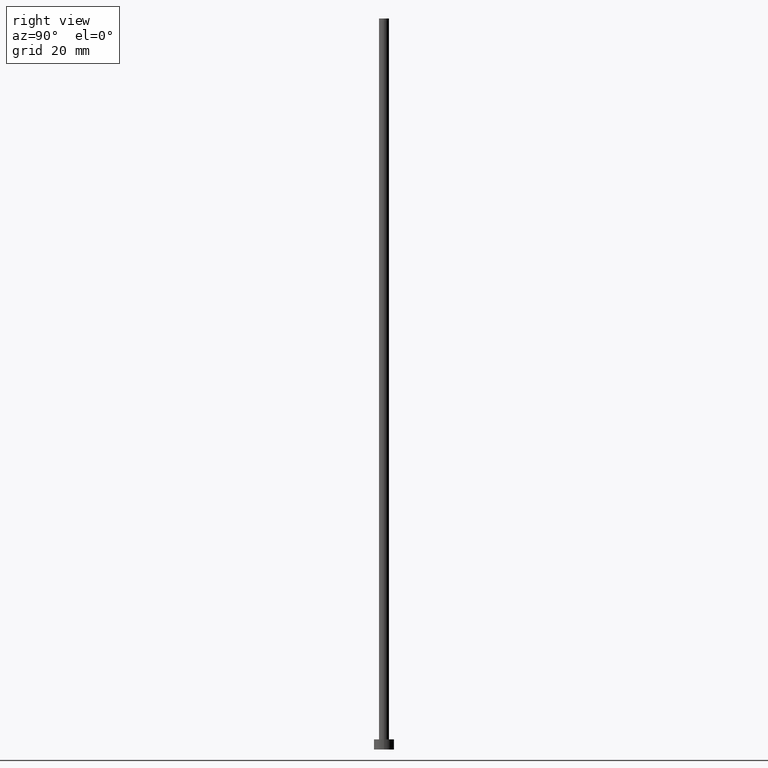
[diagram: clean part render]
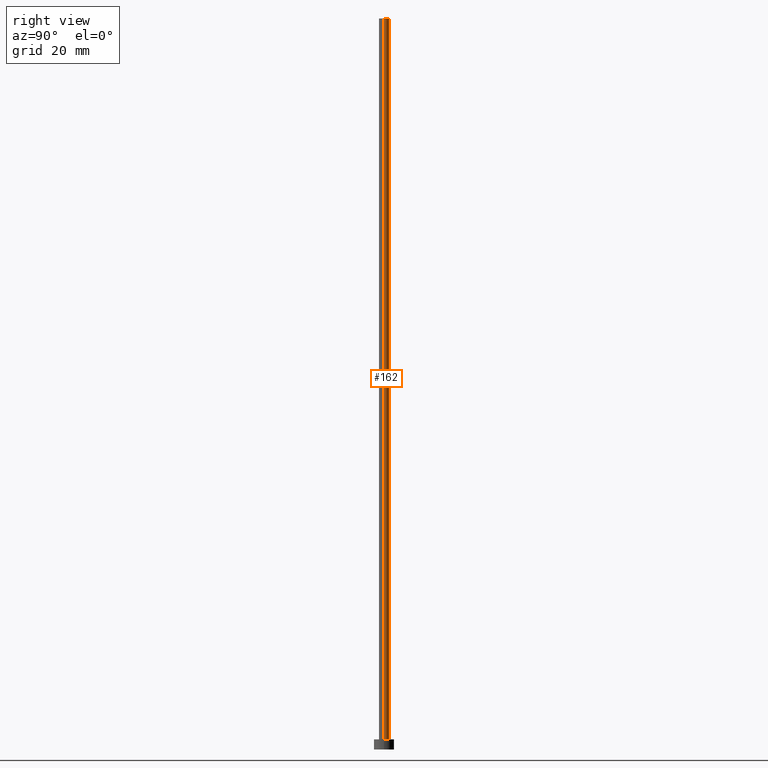
[diagram: same view with one face highlighted and labeled with its STEP entity id]
A machine part, right view. The second image highlights one B-rep face of the part: STEP entity #162.
In plain terms, the highlighted cylindrical surface (edge-blend (fillet) strip) has radius 1 mm, axis along (-0, -0, -1).
Its self-contained STEP definition (entity closure, byte-faithful):
#5 = VERTEX_POINT ( 'NONE', #41 ) ;
#33 = DIRECTION ( 'NONE',  ( 1.000000000000000000, 0.000000000000000000, 0.000000000000000000 ) ) ;
#41 = CARTESIAN_POINT ( 'NONE',  ( 1.000000000000000000, 1.224646799147352961E-16, 2.000000000000000000 ) ) ;
#64 = VERTEX_POINT ( 'NONE', #201 ) ;
#68 = DIRECTION ( 'NONE',  ( -0.000000000000000000, -0.000000000000000000, -1.000000000000000000 ) ) ;
#83 = ORIENTED_EDGE ( 'NONE', *, *, #227, .T. ) ;
#85 = FACE_OUTER_BOUND ( 'NONE', #123, .T. ) ;
#86 = DIRECTION ( 'NONE',  ( 0.000000000000000000, 0.000000000000000000, 1.000000000000000000 ) ) ;
#95 = VERTEX_POINT ( 'NONE', #250 ) ;
#100 = CARTESIAN_POINT ( 'NONE',  ( 1.000000000000000000, 1.224646799147352961E-16, 145.1999999999999886 ) ) ;
#105 = CARTESIAN_POINT ( 'NONE',  ( 0.000000000000000000, 0.000000000000000000, 145.1999999999999886 ) ) ;
#107 = DIRECTION ( 'NONE',  ( -0.000000000000000000, -0.000000000000000000, -1.000000000000000000 ) ) ;
#112 = VECTOR ( 'NONE', #107, 1000.000000000000000 ) ;
#116 = CARTESIAN_POINT ( 'NONE',  ( 1.000000000000000000, 1.224646799147352961E-16, 145.1999999999999886 ) ) ;
#123 = EDGE_LOOP ( 'NONE', ( #237, #132, #83, #245 ) ) ;
#132 = ORIENTED_EDGE ( 'NONE', *, *, #140, .T. ) ;
#134 = DIRECTION ( 'NONE',  ( 1.000000000000000000, 0.000000000000000000, 0.000000000000000000 ) ) ;
#137 = VERTEX_POINT ( 'NONE', #100 ) ;
#140 = EDGE_CURVE ( 'NONE', #137, #5, #186, .T. ) ;
#145 = LINE ( 'NONE', #173, #112 ) ;
#146 = AXIS2_PLACEMENT_3D ( 'NONE', #254, #151, #134 ) ;
#147 = EDGE_CURVE ( 'NONE', #64, #95, #145, .T. ) ;
#151 = DIRECTION ( 'NONE',  ( 0.000000000000000000, 0.000000000000000000, 1.000000000000000000 ) ) ;
#152 = EDGE_CURVE ( 'NONE', #137, #64, #166, .T. ) ;
#162 = ADVANCED_FACE ( 'NONE', ( #85 ), #169, .T. ) ;
#166 = CIRCLE ( 'NONE', #236, 1.000000000000000000 ) ;
#169 = CYLINDRICAL_SURFACE ( 'NONE', #171, 1.000000000000000000 ) ;
#171 = AXIS2_PLACEMENT_3D ( 'NONE', #251, #68, #212 ) ;
#173 = CARTESIAN_POINT ( 'NONE',  ( -1.000000000000000000, 0.000000000000000000, 145.1999999999999886 ) ) ;
#175 = VECTOR ( 'NONE', #220, 1000.000000000000000 ) ;
#186 = LINE ( 'NONE', #116, #175 ) ;
#193 = CIRCLE ( 'NONE', #146, 1.000000000000000000 ) ;
#201 = CARTESIAN_POINT ( 'NONE',  ( -1.000000000000000000, 0.000000000000000000, 145.1999999999999886 ) ) ;
#212 = DIRECTION ( 'NONE',  ( -1.000000000000000000, 0.000000000000000000, 0.000000000000000000 ) ) ;
#220 = DIRECTION ( 'NONE',  ( -0.000000000000000000, -0.000000000000000000, -1.000000000000000000 ) ) ;
#227 = EDGE_CURVE ( 'NONE', #5, #95, #193, .T. ) ;
#236 = AXIS2_PLACEMENT_3D ( 'NONE', #105, #86, #33 ) ;
#237 = ORIENTED_EDGE ( 'NONE', *, *, #152, .F. ) ;
#245 = ORIENTED_EDGE ( 'NONE', *, *, #147, .F. ) ;
#250 = CARTESIAN_POINT ( 'NONE',  ( -1.000000000000000000, 0.000000000000000000, 2.000000000000000000 ) ) ;
#251 = CARTESIAN_POINT ( 'NONE',  ( 0.000000000000000000, 0.000000000000000000, 145.1999999999999886 ) ) ;
#254 = CARTESIAN_POINT ( 'NONE',  ( 0.000000000000000000, 0.000000000000000000, 2.000000000000000000 ) ) ;